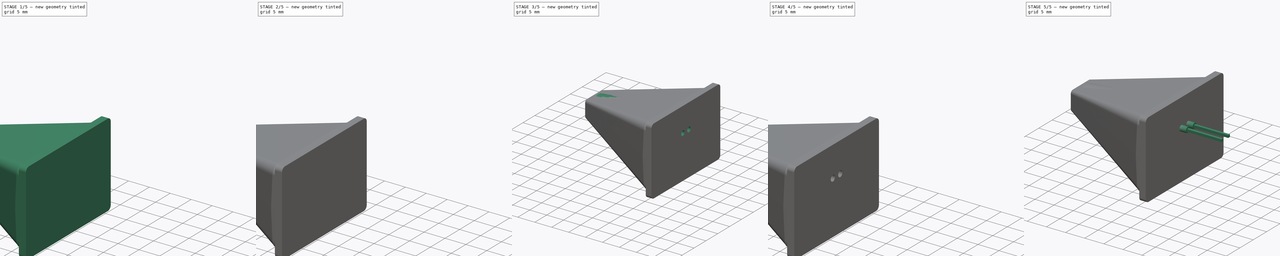
[diagram: build sequence overview — one tinted view per stage of 5, left to right]
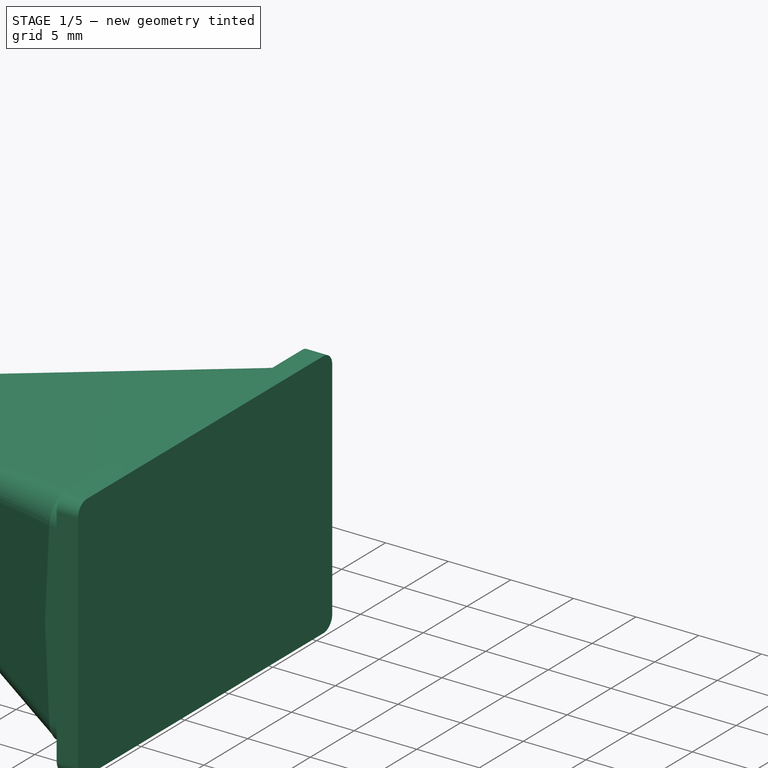
[diagram: stage 1 of 5 — iso view after this stage's code; geometry added in this stage tinted green]
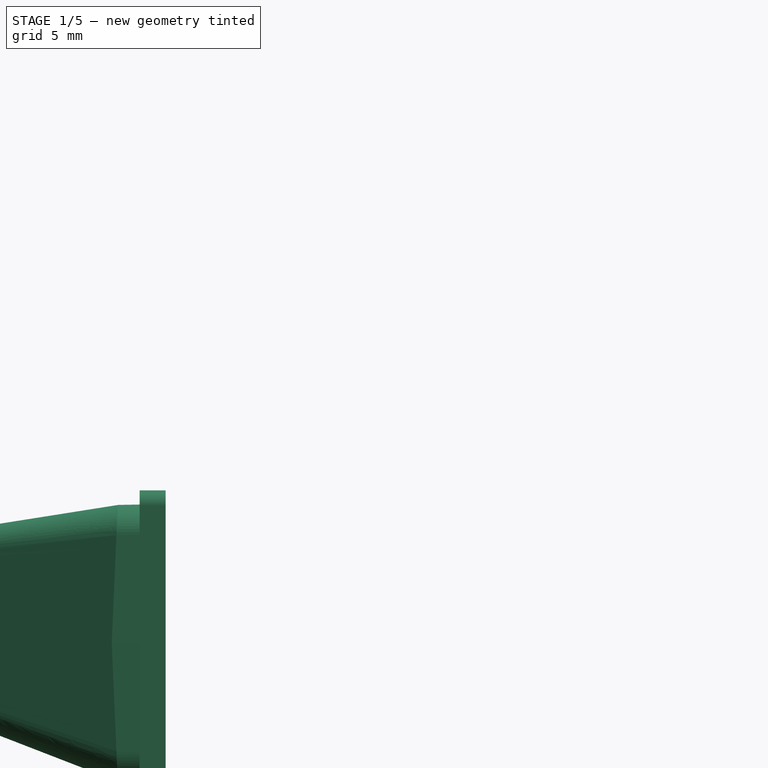
[diagram: stage 1 of 5 — front view after this stage's code; geometry added in this stage tinted green]
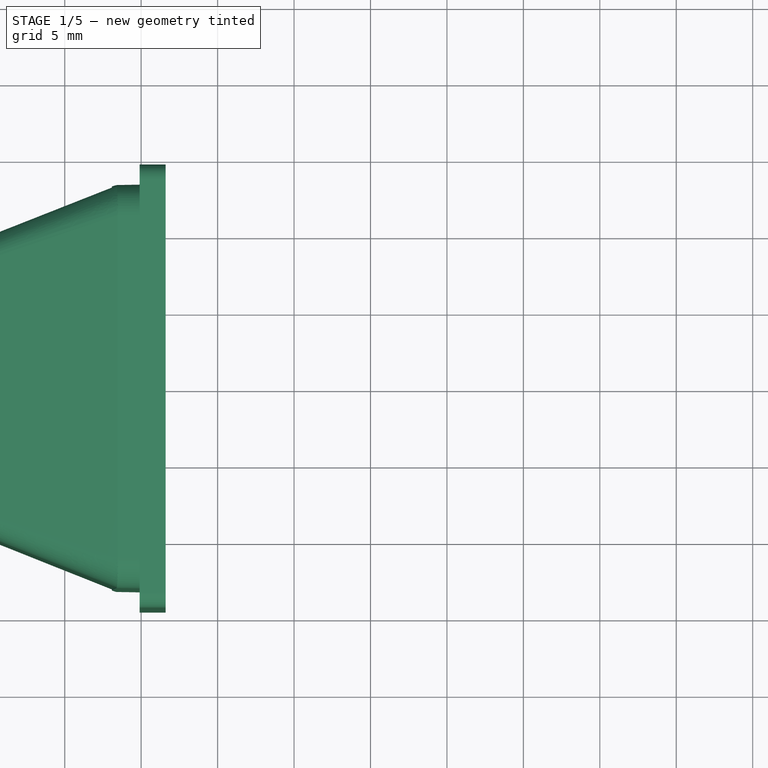
[diagram: stage 1 of 5 — top view after this stage's code; geometry added in this stage tinted green]
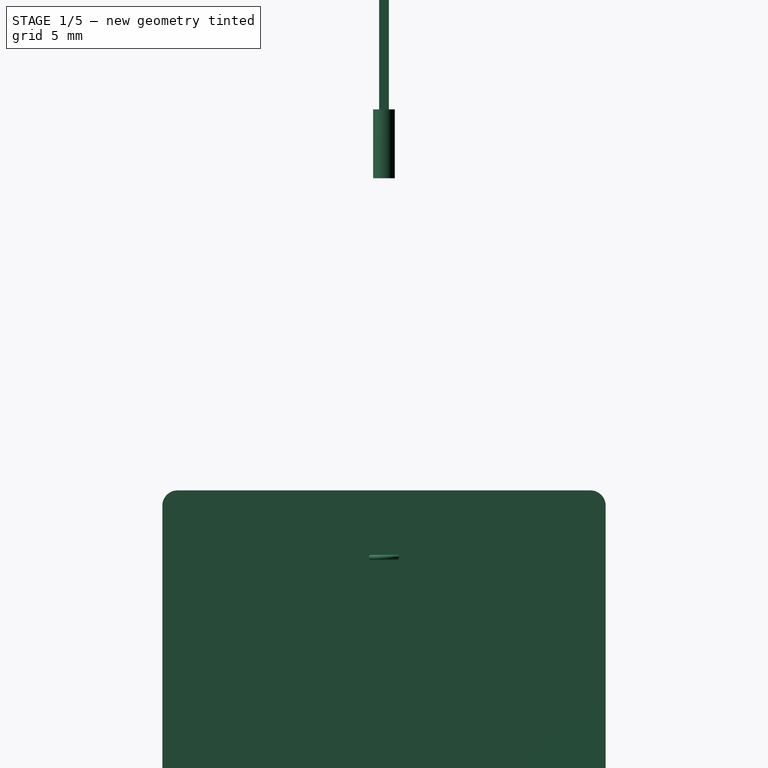
[diagram: stage 1 of 5 — right view after this stage's code; geometry added in this stage tinted green]
FCSTD DOCUMENT  (FreeCAD 0.19R24366 (Git))
Label: nose
License: All rights reserved
LicenseURL: http://en.wikipedia.org/wiki/All_rights_reserved
objects: Part::Torus×8, Part::FeaturePython×7, Part::Cone×5, Part::Cylinder×4, Part::Box×4, Part::Compound×3, Part::Feature×3, Sketcher::SketchObject×2, PartDesign::AdditiveLoft×1, PartDesign::Body×1
note: 39 computed .brp shape members not serialized (recipe doc carries the construction recipe); baked Part::Feature solids carry a one-line shape summary decoded from their .brp

FEATURE [Part::Torus] Torus006
  Angle1 = -180
  Angle2 = 180
  Angle3 = 360
  AttacherType = Attacher::AttachEngine3D
  Placement = pos=(-1.27,0,0) rot=(0,0,1;0rad)
  Radius1 = 0.835
  Radius2 = 0.165
  expr: Radius1 = 1.67 / 2
FEATURE [Part::Torus] Torus007
  Angle1 = -180
  Angle2 = 180
  Angle3 = 360
  AttacherType = Attacher::AttachEngine3D
  Placement = pos=(1.27,0,0) rot=(0,0,1;0rad)
  Radius1 = 0.835
  Radius2 = 0.165
  expr: Radius1 = 1.67 / 2
FEATURE [Part::Cylinder] Cylinder003
  Angle = 360
  AttacherType = Attacher::AttachEngine3D
  Height = 4.5
  Placement = pos=(1.27,0,24.8) rot=(0,0,1;0rad)
  Radius = 0.715
  expr: Radius = 1.43 / 2
FEATURE [Part::Box] Box003  label="Cube011"
  AttacherType = Attacher::AttachEngine3D
  Height = 9
  Length = 0.64
  Placement = pos=(-1.59,-0.32,29.3) rot=(0,0,1;0rad)
  Width = 0.64
  expr: .Placement.Base.x = -1.27 - 0.64 / 2
  expr: .Placement.Base.y = -0.64 / 2
FEATURE [Sketcher::SketchObject] Sketch005
  FullyConstrained = false
  Placement = pos=(0,0,0) rot=(0,0,1;3.14159rad)
  sketch-geometry (14):
    g0: BSplineCurve PolesCount=15 KnotsCount=15 Degree=1 IsPeriodic=0
    g1: BSplineCurve PolesCount=15 KnotsCount=15 Degree=1 IsPeriodic=0
    g2: BSplineCurve PolesCount=15 KnotsCount=15 Degree=1 IsPeriodic=0
    g3: BSplineCurve PolesCount=15 KnotsCount=15 Degree=1 IsPeriodic=0
    g4: LineSegment StartX=-6.05619 StartY=13.2162 StartZ=0 EndX=-12.7053 EndY=13.1864 EndZ=0
    g5: BSplineCurve PolesCount=15 KnotsCount=15 Degree=1 IsPeriodic=0
    g6: LineSegment StartX=-14.67 StartY=11.2129 StartZ=0 EndX=-14.67 EndY=-11.2129 EndZ=0
    g7: BSplineCurve PolesCount=15 KnotsCount=15 Degree=1 IsPeriodic=0
    g8: LineSegment StartX=-12.7053 StartY=-13.1864 StartZ=0 EndX=-6.05619 EndY=-13.2162 EndZ=0
    g9: LineSegment StartX=-5.18381 StartY=-13.2162 StartZ=0 EndX=1.46533 EndY=-13.1864 EndZ=0
    g10: BSplineCurve PolesCount=15 KnotsCount=15 Degree=1 IsPeriodic=0
    g11: LineSegment StartX=3.43002 StartY=-11.2129 StartZ=0 EndX=3.43002 EndY=11.2129 EndZ=0
    g12: BSplineCurve PolesCount=15 KnotsCount=15 Degree=1 IsPeriodic=0
    g13: LineSegment StartX=1.46533 StartY=13.1864 StartZ=0 EndX=-5.18381 EndY=13.1864 EndZ=0
  constraints (3):
    c: Coincident(g13,g12)
    c: Coincident(g13,g1)
    c: Horizontal(g13)
FEATURE [Sketcher::SketchObject] Sketch006
  AttachmentOffset = pos=(0,0,24) rot=(0,0,1;0rad)
  FullyConstrained = true
  MapMode = 5
  Placement = pos=(0,0,24) rot=(0,0,1;0rad)
  Support = -> [XY_Plane002]
  expr: Constraints[5] = 5 + 2.54
  expr: Constraints[6] = 2.87
  sketch-geometry (13):
    g0: LineSegment StartX=1.07711 StartY=-3.77 StartZ=0 EndX=4.66289 EndY=-3.77 EndZ=0
    g1: LineSegment StartX=5.37 StartY=-3.06289 StartZ=0 EndX=5.37 EndY=3.06289 EndZ=0
    g2: LineSegment StartX=4.66289 StartY=3.77 StartZ=0 EndX=1.07711 EndY=3.77 EndZ=0
    g3: LineSegment StartX=0.37 StartY=3.06289 StartZ=0 EndX=0.37 EndY=-3.06289 EndZ=0
    g4: GeomPoint X=2.87 Y=0 Z=0
    g5: ArcOfCircle CenterX=4.66289 CenterY=-3.06289 CenterZ=0 NormalX=0 NormalY=0 NormalZ=1 AngleXU=0 Radius=0.707107 StartAngle=4.71239 EndAngle=6.28319
    g6: GeomPoint X=5.37 Y=-3.77 Z=0
    g7: ArcOfCircle CenterX=1.07711 CenterY=-3.06289 CenterZ=0 NormalX=0 NormalY=0 NormalZ=1 AngleXU=0 Radius=0.707107 StartAngle=3.14159 EndAngle=4.71239
    g8: GeomPoint X=0.37 Y=-3.77 Z=0
    g9: ArcOfCircle CenterX=4.66289 CenterY=3.06289 CenterZ=0 NormalX=0 NormalY=0 NormalZ=1 AngleXU=0 Radius=0.707107 StartAngle=0 EndAngle=1.5708
    g10: GeomPoint X=5.37 Y=3.77 Z=0
    g11: ArcOfCircle CenterX=1.07711 CenterY=3.06289 CenterZ=0 NormalX=0 NormalY=0 NormalZ=1 AngleXU=0 Radius=0.707107 StartAngle=1.5708 EndAngle=3.14159
    g12: GeomPoint X=0.37 Y=3.77 Z=0
  constraints (28):
    c: Horizontal(g0)
    c: Horizontal(g2)
    c: Vertical(g3)
    c: Symmetric(g10,g6,g-1)
    c: DistanceX(g12,g10) = 5
    c: DistanceY(g8,g12) = 7.54
    c: Distance(g-1,g4) = 2.87
    c: Symmetric(g12,g6,g4)
    c: PointOnObject(g6,g0)
    c: PointOnObject(g6,g1)
    c: Tangent(g0,g5) = -1.5708
    c: Tangent(g1,g5) = -1.5708
    c: Distance(g5,g6) = 1
    c: PointOnObject(g8,g0)
    c: PointOnObject(g8,g3)
    c: Tangent(g0,g7) = -1.5708
    c: Tangent(g3,g7) = -1.5708
    c: Distance(g8,g7) = 1
    c: PointOnObject(g10,g1)
    c: PointOnObject(g10,g2)
    c: Tangent(g1,g9) = -1.5708
    c: Tangent(g2,g9) = -1.5708
    c: Distance(g10,g9) = 1
    c: PointOnObject(g12,g2)
    c: PointOnObject(g12,g3)
    c: Tangent(g2,g11) = -1.5708
    c: Tangent(g3,g11) = -1.5708
    c: Distance(g12,g11) = 1
FEATURE [PartDesign::AdditiveLoft] AdditiveLoft002
  Closed = false
  Profile = -> Sketch006
  Ruled = false
  Sections = -> [Sketch005]
FEATURE [PartDesign::Body] Body002  label="cone004"
  Group = -> [Sketch006,Sketch005,AdditiveLoft002]
  Origin = -> Origin002
  Placement = pos=(-56.5,0,0) rot=(0.707107,0,-0.707107;3.14159rad)
  Tip = -> AdditiveLoft002
FEATURE [Part::Feature] Part__Feature021  label="1593D Contoured Endplate002"
  Placement = pos=(-54.25,0,-5.62) rot=(0.57735,0.57735,-0.57735;4.18879rad)
  shape: bbox 3.517 x 29 x 20 mm, 23 faces (baked)
FEATURE [Part::FeaturePython] Connect001  label="ConeConnected"  # WARN: FeaturePython — macro-defined, semantics opaque (R4)
  Objects = -> [Body002,Part__Feature021]
  Tolerance = 0
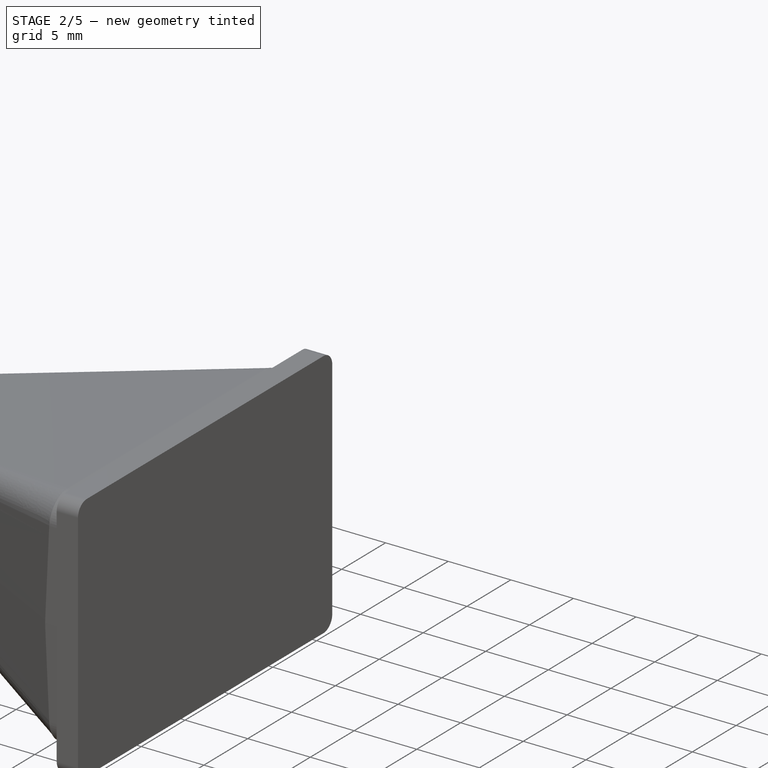
[diagram: stage 2 of 5 — iso view after this stage's code; geometry added in this stage tinted green]
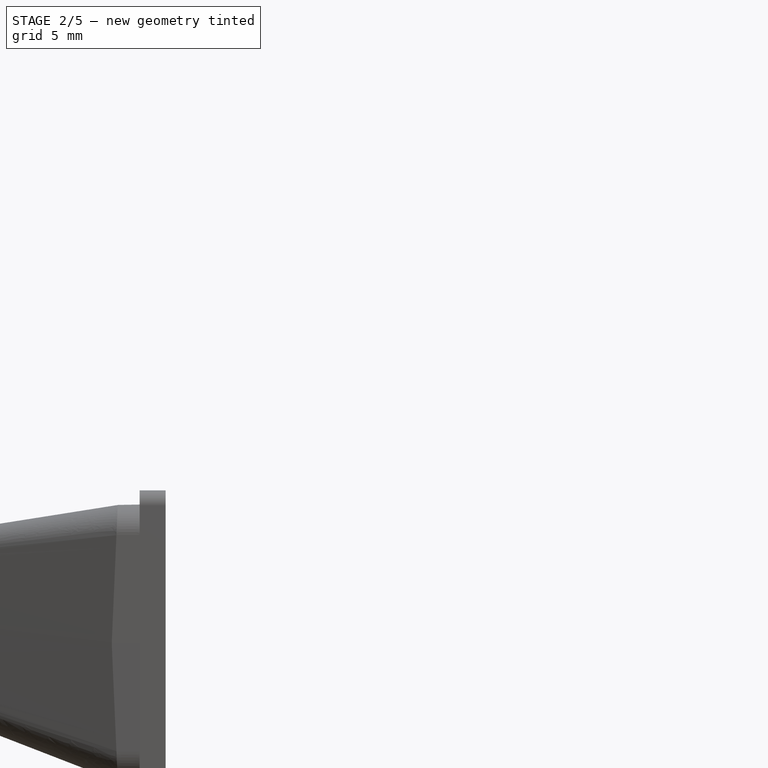
[diagram: stage 2 of 5 — front view after this stage's code; geometry added in this stage tinted green]
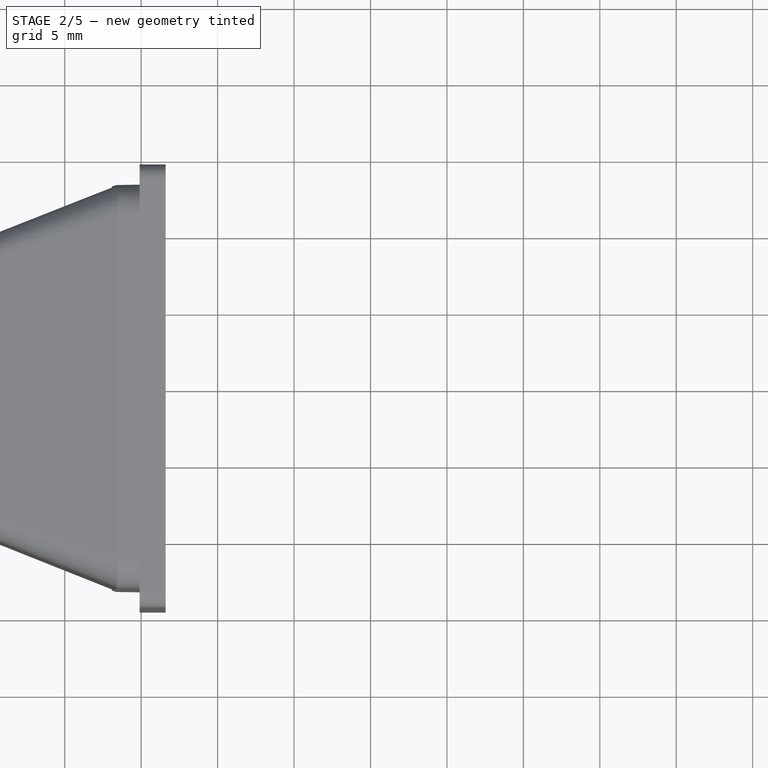
[diagram: stage 2 of 5 — top view after this stage's code; geometry added in this stage tinted green]
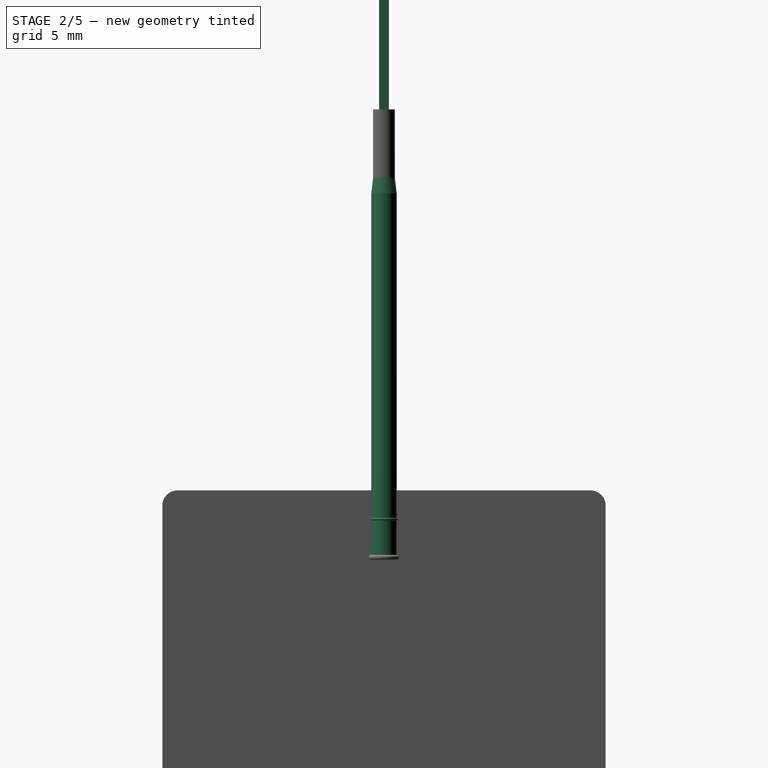
[diagram: stage 2 of 5 — right view after this stage's code; geometry added in this stage tinted green]
FEATURE [Part::Cylinder] Cylinder002
  Angle = 360
  AttacherType = Attacher::AttachEngine3D
  Height = 4.5
  Placement = pos=(-1.27,0,24.8) rot=(0,0,1;0rad)
  Radius = 0.715
  expr: Radius = 1.43 / 2
FEATURE [Part::Torus] Torus004
  Angle1 = -180
  Angle2 = 180
  Angle3 = 360
  AttacherType = Attacher::AttachEngine3D
  Placement = pos=(-1.27,0,2.5) rot=(0,0,1;0rad)
  Radius1 = 0.835
  Radius2 = 0.08
  expr: Radius1 = 1.67 / 2
FEATURE [Part::Torus] Torus005
  Angle1 = -180
  Angle2 = 180
  Angle3 = 360
  AttacherType = Attacher::AttachEngine3D
  Placement = pos=(1.27,0,2.5) rot=(0,0,1;0rad)
  Radius1 = 0.835
  Radius2 = 0.08
  expr: Radius1 = 1.67 / 2
FEATURE [Part::Box] Box002  label="Cube010"
  AttacherType = Attacher::AttachEngine3D
  Height = 9
  Length = 0.64
  Placement = pos=(0.95,-0.32,29.3) rot=(0,0,1;0rad)
  Width = 0.64
  expr: .Placement.Base.y = -0.64 / 2
  expr: .Placement.Base.x = 1.27 - 0.64 / 2
FEATURE [Part::Cone] Cone005
  Angle = 360
  AttacherType = Attacher::AttachEngine3D
  Height = 1
  Placement = pos=(-1.27,0,23.8) rot=(0,0,1;0rad)
  Radius1 = 0.835
  Radius2 = 0.715
  expr: Radius1 = 1.67 / 2
  expr: Radius2 = 1.43 / 2
FEATURE [Part::FeaturePython] Tube002  # WARN: FeaturePython — macro-defined, semantics opaque (R4)
  AttacherType = Attacher::AttachEngine3D
  Height = 23.8
  InnerRadius = 0.65
  OuterRadius = 0.835
  Placement = pos=(-1.27,0,0) rot=(0,0,1;0rad)
  expr: OuterRadius = 1.67 / 2
  expr: InnerRadius = 1.3 / 2
FEATURE [Part::FeaturePython] Tube003  # WARN: FeaturePython — macro-defined, semantics opaque (R4)
  AttacherType = Attacher::AttachEngine3D
  Height = 23.8
  InnerRadius = 0.65
  OuterRadius = 0.835
  Placement = pos=(1.27,0,0) rot=(0,0,1;0rad)
  expr: InnerRadius = 1.3 / 2
  expr: OuterRadius = 1.67 / 2
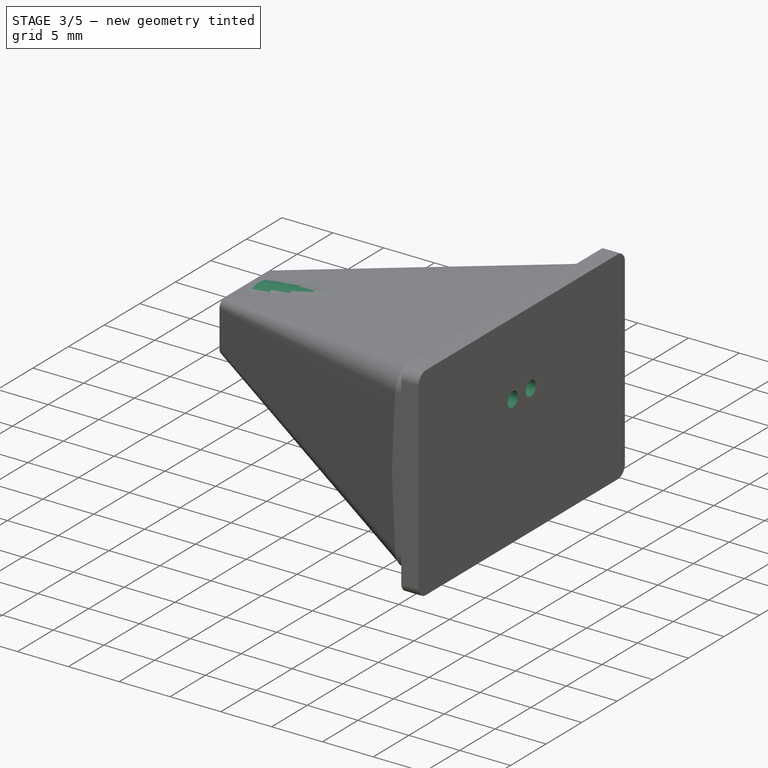
[diagram: stage 3 of 5 — iso view after this stage's code; geometry added in this stage tinted green]
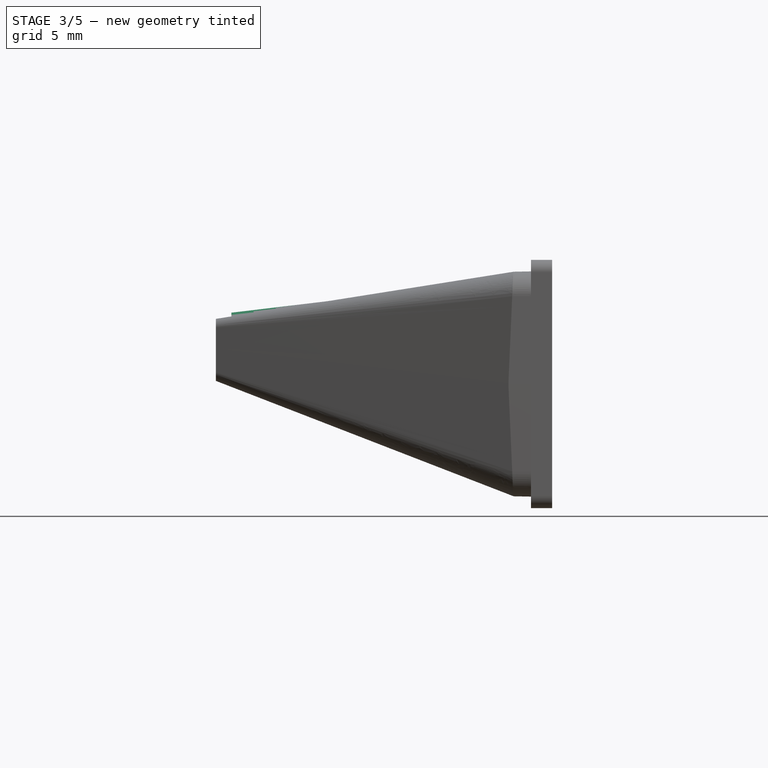
[diagram: stage 3 of 5 — front view after this stage's code; geometry added in this stage tinted green]
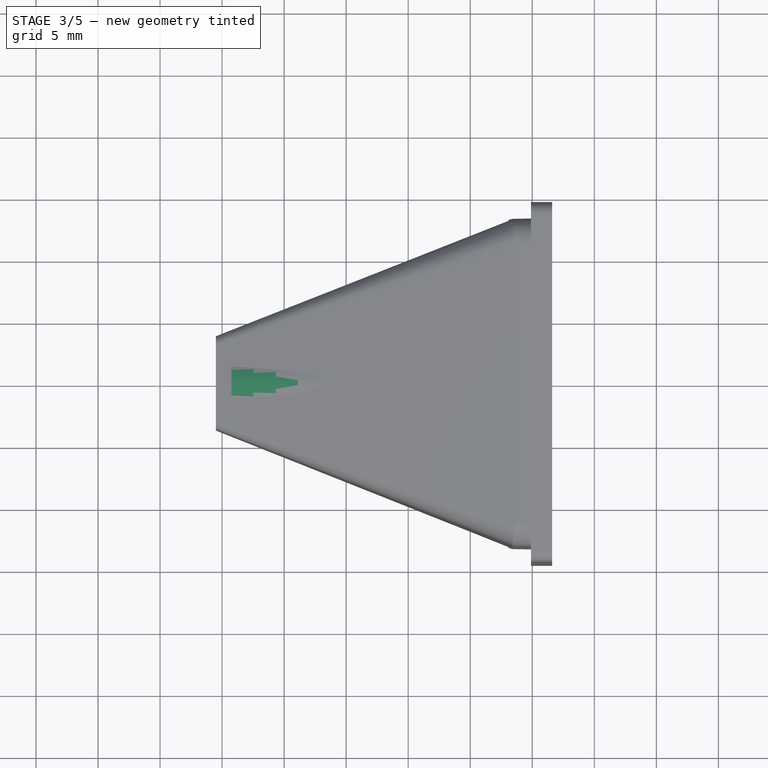
[diagram: stage 3 of 5 — top view after this stage's code; geometry added in this stage tinted green]
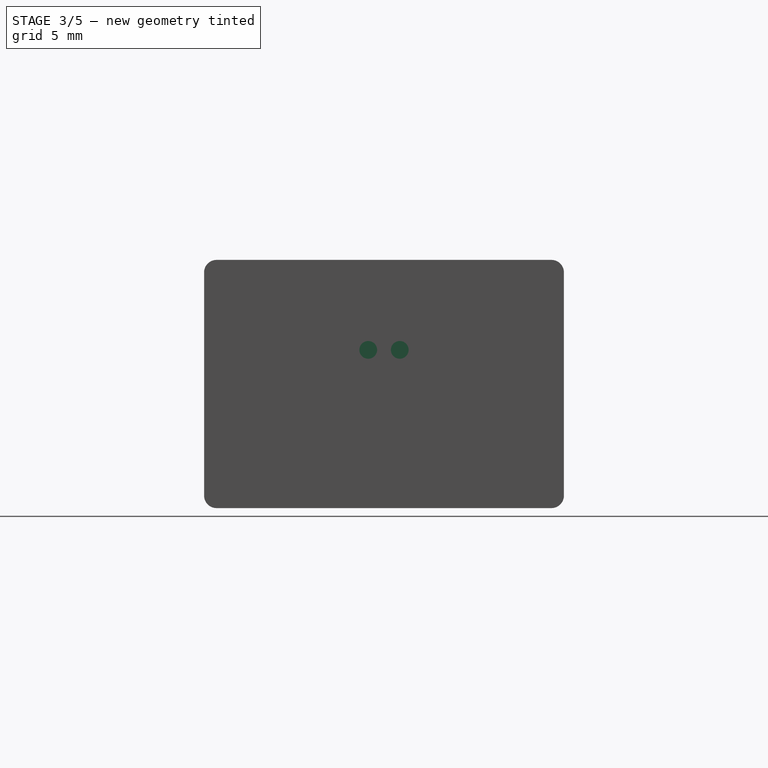
[diagram: stage 3 of 5 — right view after this stage's code; geometry added in this stage tinted green]
FEATURE [Part::Cone] Cone
  Angle = 360
  AttacherType = Attacher::AttachEngine3D
  Height = 25
  Placement = pos=(-79.25,0,-2.87) rot=(0,1,0;1.5708rad)
  Radius1 = 3
  Radius2 = 6
FEATURE [Part::Feature] Part__Feature017  label="1593D Top"
  Placement = pos=(0,0,-5.62) rot=(1,0,0;3.14159rad)
  shape: bbox 114 x 35.71 x 12.96 mm, 111 faces (baked)
FEATURE [Part::Feature] Part__Feature018  label="1593D Bottom"
  Placement = pos=(0,0,-5.62) rot=(0,0,1;3.14159rad)
  shape: bbox 114 x 35.68 x 240.8 mm, 294 faces (baked)
FEATURE [Part::Cone] Cone004
  Angle = 360
  AttacherType = Attacher::AttachEngine3D
  Height = 1
  Placement = pos=(1.27,0,23.8) rot=(0,0,1;0rad)
  Radius1 = 0.835
  Radius2 = 0.715
  expr: Radius2 = 1.43 / 2
  expr: Radius1 = 1.67 / 2
FEATURE [Part::Compound] Compound004  label="R100-1W001"
  Links = -> [Tube002,Tube003,Torus006,Torus007,Torus004,Torus005,Cone005,Cone004,Cylinder002,Cylinder003,Box003,Box002]
  Placement = pos=(-81,0,-2.87001) rot=(0.57735,0.57735,0.57735;2.0944rad)
FEATURE [Part::FeaturePython] Connect  label="R100-1W_Connected"  # WARN: FeaturePython — macro-defined, semantics opaque (R4)
  Objects = -> [Compound004]
  Tolerance = 0
FEATURE [Part::FeaturePython] Cutout001  label="NoseCone"  # WARN: FeaturePython — macro-defined, semantics opaque (R4)
  Base = -> Connect001
  Tolerance = 0
  Tool = -> Connect
FEATURE [Part::Compound] Compound  label="NoseCone001"
  Links = -> [Cutout001]
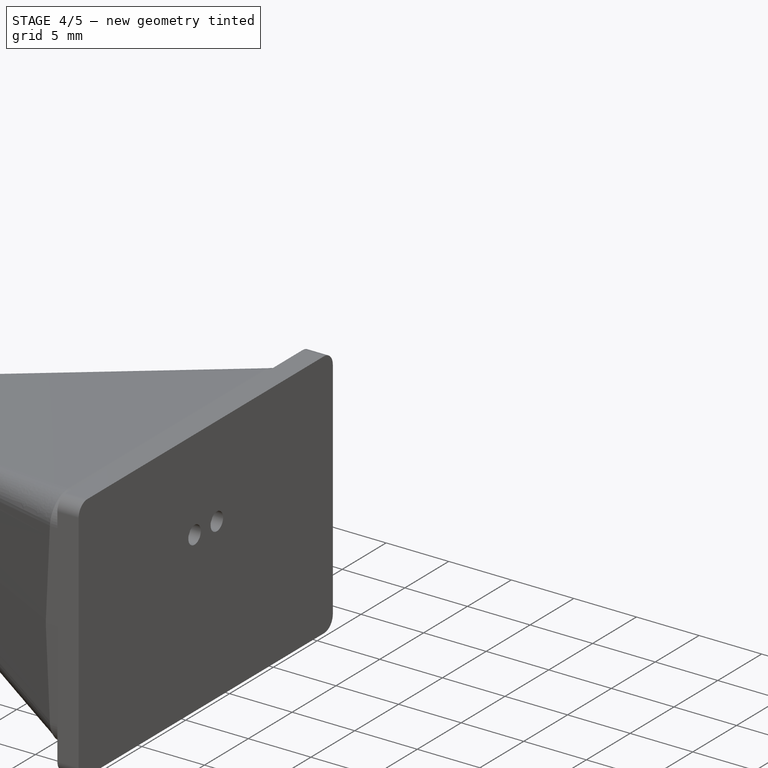
[diagram: stage 4 of 5 — iso view after this stage's code; geometry added in this stage tinted green]
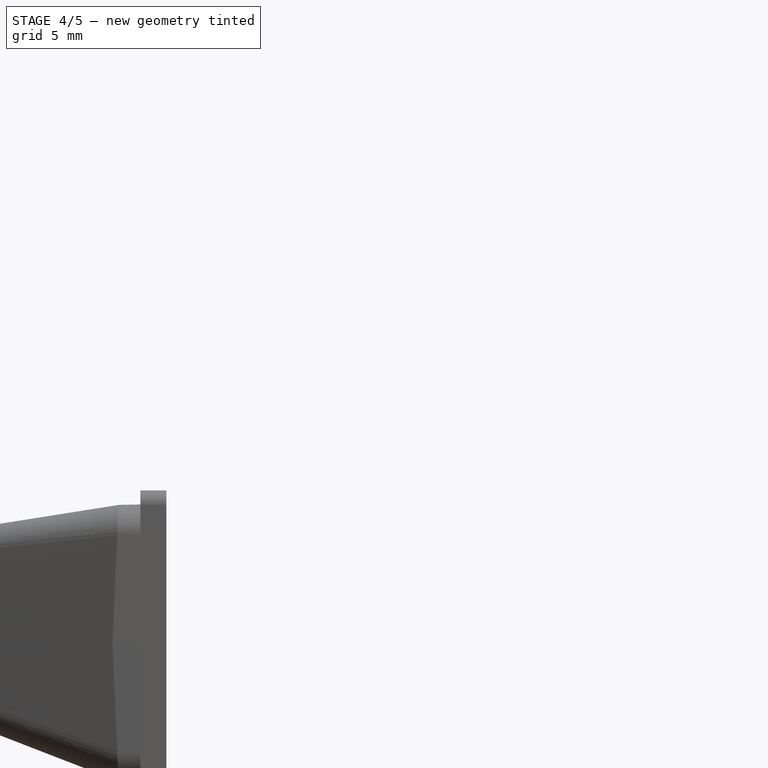
[diagram: stage 4 of 5 — front view after this stage's code; geometry added in this stage tinted green]
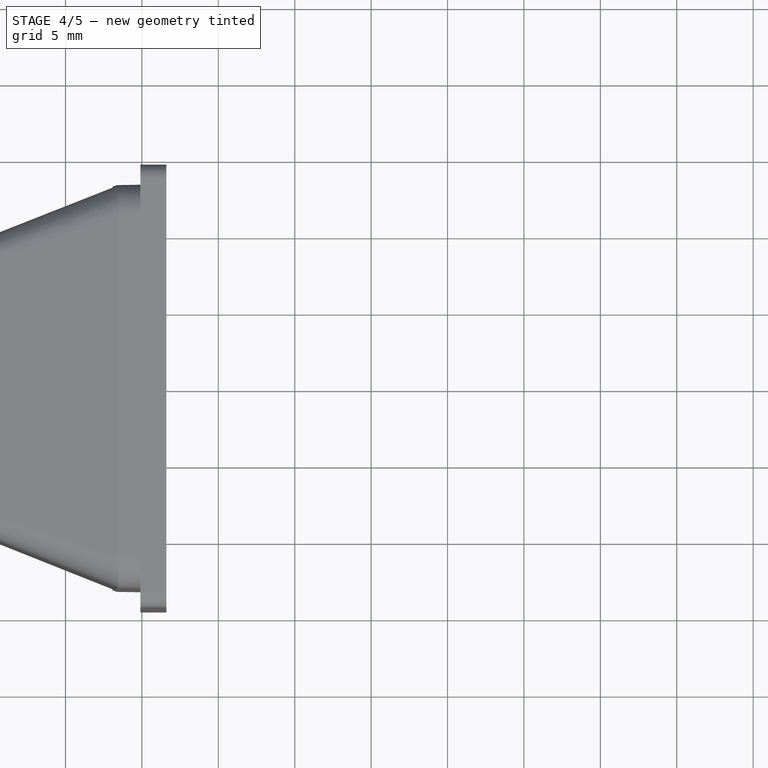
[diagram: stage 4 of 5 — top view after this stage's code; geometry added in this stage tinted green]
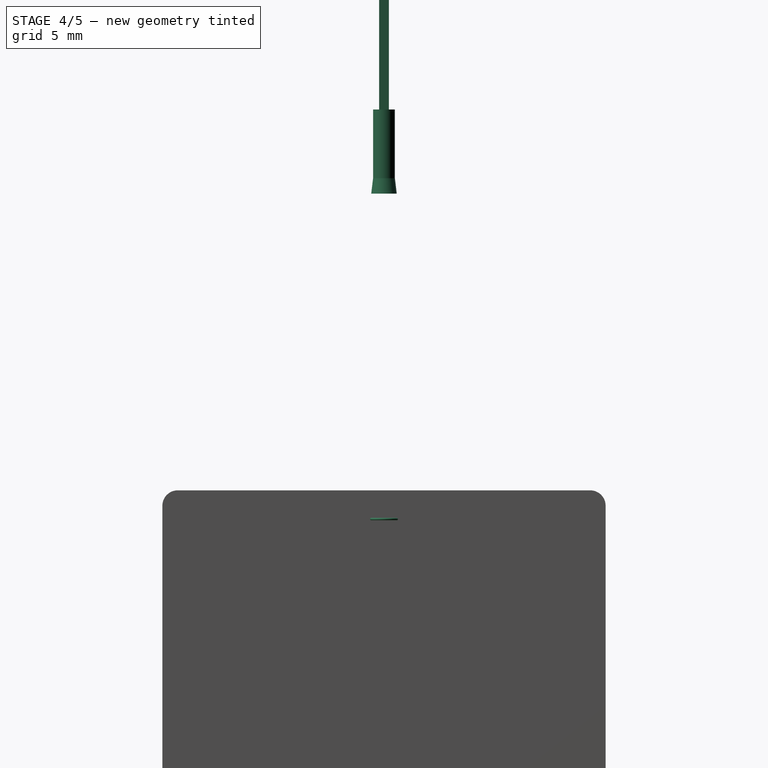
[diagram: stage 4 of 5 — right view after this stage's code; geometry added in this stage tinted green]
FEATURE [Part::Torus] Torus003
  Angle1 = -180
  Angle2 = 180
  Angle3 = 360
  AttacherType = Attacher::AttachEngine3D
  Placement = pos=(1.27,0,2.5) rot=(0,0,1;0rad)
  Radius1 = 0.835
  Radius2 = 0.08
  expr: Radius1 = 1.67 / 2
FEATURE [Part::Cone] Cone002
  Angle = 360
  AttacherType = Attacher::AttachEngine3D
  Height = 1
  Placement = pos=(-1.27,0,23.8) rot=(0,0,1;0rad)
  Radius1 = 0.835
  Radius2 = 0.715
  expr: Radius2 = 1.43 / 2
  expr: Radius1 = 1.67 / 2
FEATURE [Part::Cone] Cone003
  Angle = 360
  AttacherType = Attacher::AttachEngine3D
  Height = 1
  Placement = pos=(1.27,0,23.8) rot=(0,0,1;0rad)
  Radius1 = 0.835
  Radius2 = 0.715
  expr: Radius1 = 1.67 / 2
  expr: Radius2 = 1.43 / 2
FEATURE [Part::Cylinder] Cylinder
  Angle = 360
  AttacherType = Attacher::AttachEngine3D
  Height = 4.5
  Placement = pos=(-1.27,0,24.8) rot=(0,0,1;0rad)
  Radius = 0.715
  expr: Radius = 1.43 / 2
FEATURE [Part::Cylinder] Cylinder001
  Angle = 360
  AttacherType = Attacher::AttachEngine3D
  Height = 4.5
  Placement = pos=(1.27,0,24.8) rot=(0,0,1;0rad)
  Radius = 0.715
  expr: Radius = 1.43 / 2
FEATURE [Part::Box] Box  label="Cube008"
  AttacherType = Attacher::AttachEngine3D
  Height = 9
  Length = 0.64
  Placement = pos=(-1.59,-0.32,29.3) rot=(0,0,1;0rad)
  Width = 0.64
  expr: .Placement.Base.y = -0.64 / 2
  expr: .Placement.Base.x = -1.27 - 0.64 / 2
FEATURE [Part::Box] Box001  label="Cube009"
  AttacherType = Attacher::AttachEngine3D
  Height = 9
  Length = 0.64
  Placement = pos=(0.95,-0.32,29.3) rot=(0,0,1;0rad)
  Width = 0.64
  expr: .Placement.Base.x = 1.27 - 0.64 / 2
  expr: .Placement.Base.y = -0.64 / 2
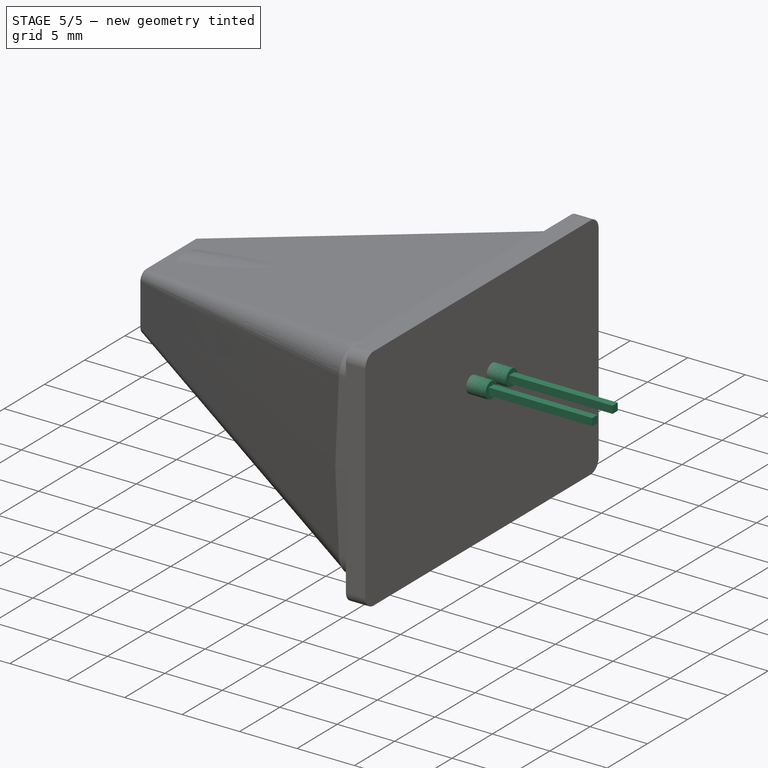
[diagram: stage 5 of 5 — iso view after this stage's code; geometry added in this stage tinted green]
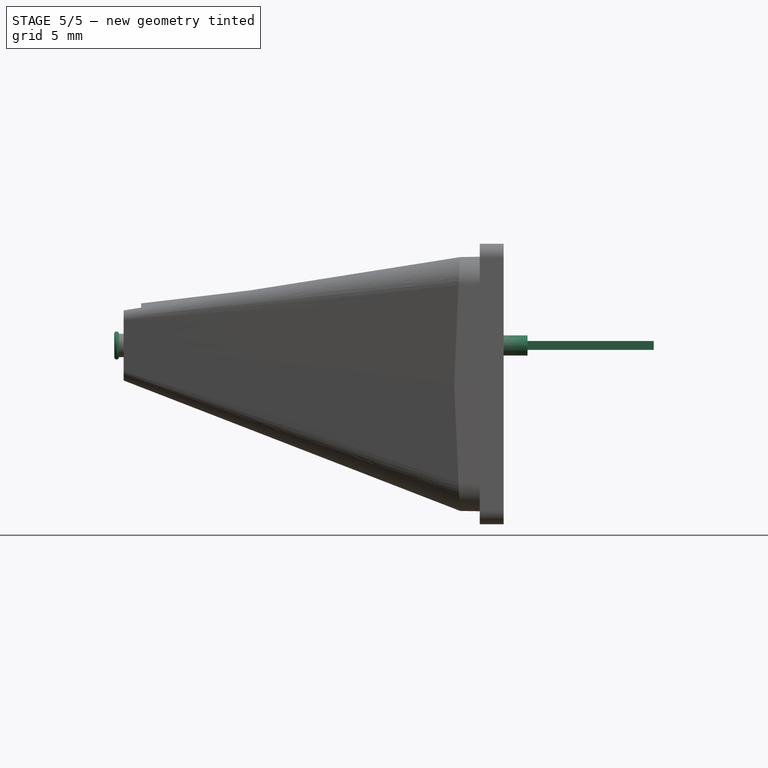
[diagram: stage 5 of 5 — front view after this stage's code; geometry added in this stage tinted green]
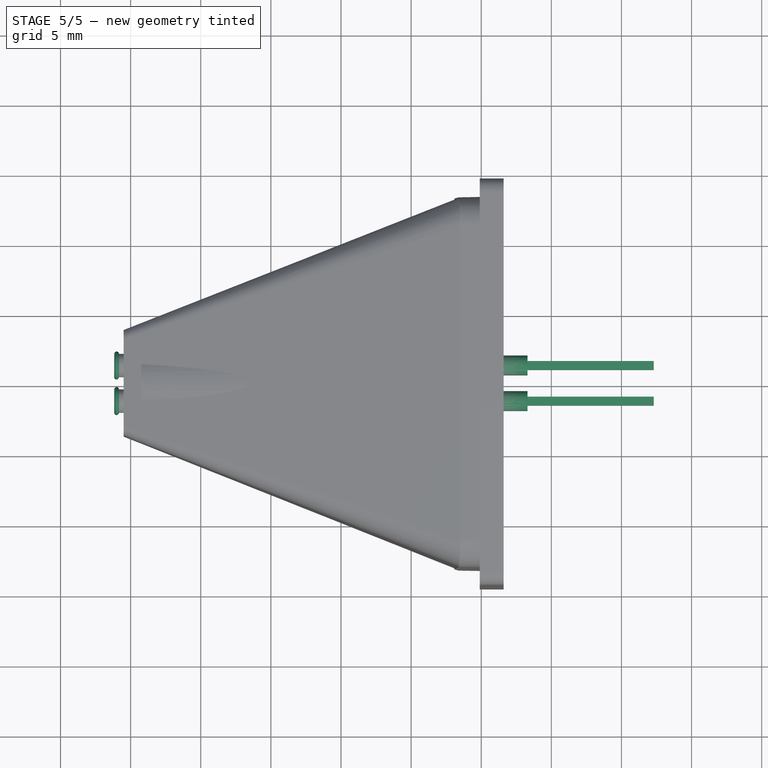
[diagram: stage 5 of 5 — top view after this stage's code; geometry added in this stage tinted green]
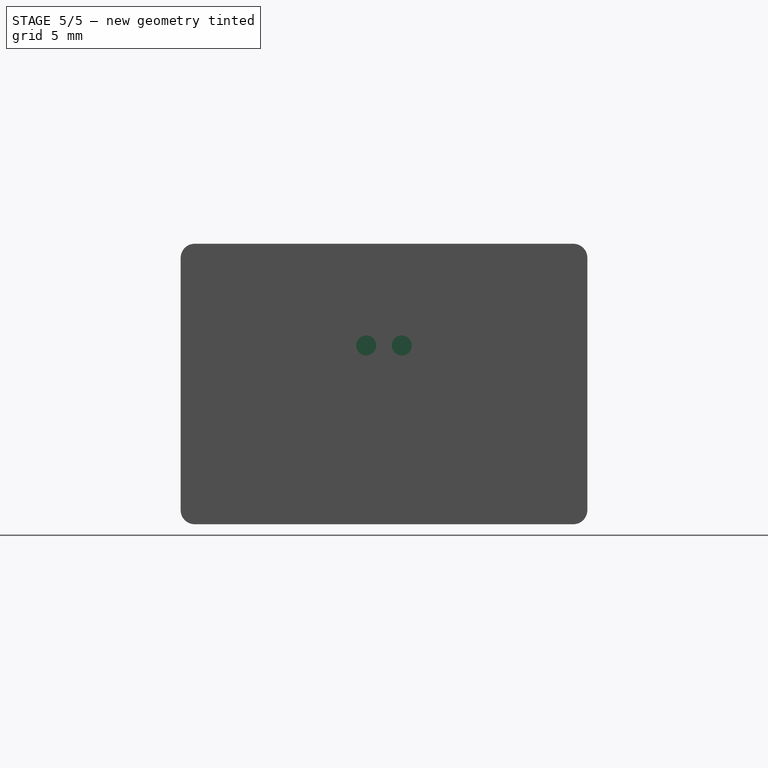
[diagram: stage 5 of 5 — right view after this stage's code; geometry added in this stage tinted green]
FEATURE [Part::FeaturePython] Tube  # WARN: FeaturePython — macro-defined, semantics opaque (R4)
  AttacherType = Attacher::AttachEngine3D
  Height = 23.8
  InnerRadius = 0.65
  OuterRadius = 0.835
  Placement = pos=(-1.27,0,0) rot=(0,0,1;0rad)
  expr: InnerRadius = 1.3 / 2
  expr: OuterRadius = 1.67 / 2
FEATURE [Part::FeaturePython] Tube001  # WARN: FeaturePython — macro-defined, semantics opaque (R4)
  AttacherType = Attacher::AttachEngine3D
  Height = 23.8
  InnerRadius = 0.65
  OuterRadius = 0.835
  Placement = pos=(1.27,0,0) rot=(0,0,1;0rad)
  expr: OuterRadius = 1.67 / 2
  expr: InnerRadius = 1.3 / 2
FEATURE [Part::Torus] Torus
  Angle1 = -180
  Angle2 = 180
  Angle3 = 360
  AttacherType = Attacher::AttachEngine3D
  Placement = pos=(-1.27,0,0) rot=(0,0,1;0rad)
  Radius1 = 0.835
  Radius2 = 0.165
  expr: Radius1 = 1.67 / 2
FEATURE [Part::Torus] Torus001
  Angle1 = -180
  Angle2 = 180
  Angle3 = 360
  AttacherType = Attacher::AttachEngine3D
  Placement = pos=(1.27,0,0) rot=(0,0,1;0rad)
  Radius1 = 0.835
  Radius2 = 0.165
  expr: Radius1 = 1.67 / 2
FEATURE [Part::Torus] Torus002
  Angle1 = -180
  Angle2 = 180
  Angle3 = 360
  AttacherType = Attacher::AttachEngine3D
  Placement = pos=(-1.27,0,2.5) rot=(0,0,1;0rad)
  Radius1 = 0.835
  Radius2 = 0.08
  expr: Radius1 = 1.67 / 2
FEATURE [Part::Compound] Compound003  label="R100-1W"
  Links = -> [Tube,Tube001,Torus,Torus001,Torus002,Torus003,Cone002,Cone003,Cylinder,Cylinder001,Box,Box001]
  Placement = pos=(-81,0,-2.87001) rot=(0.57735,0.57735,0.57735;2.0944rad)
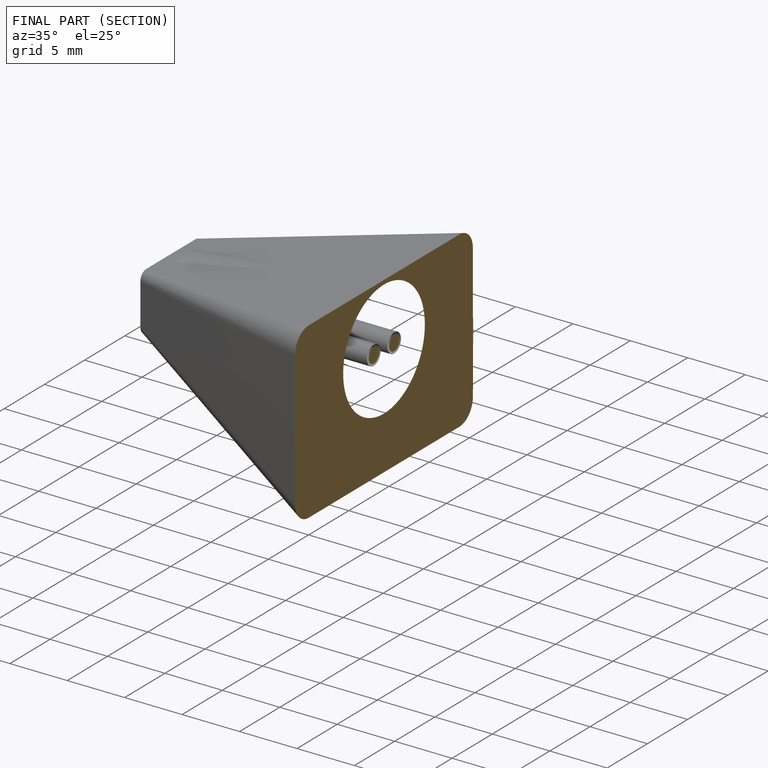
[diagram: finished part — half-section view (interior)]
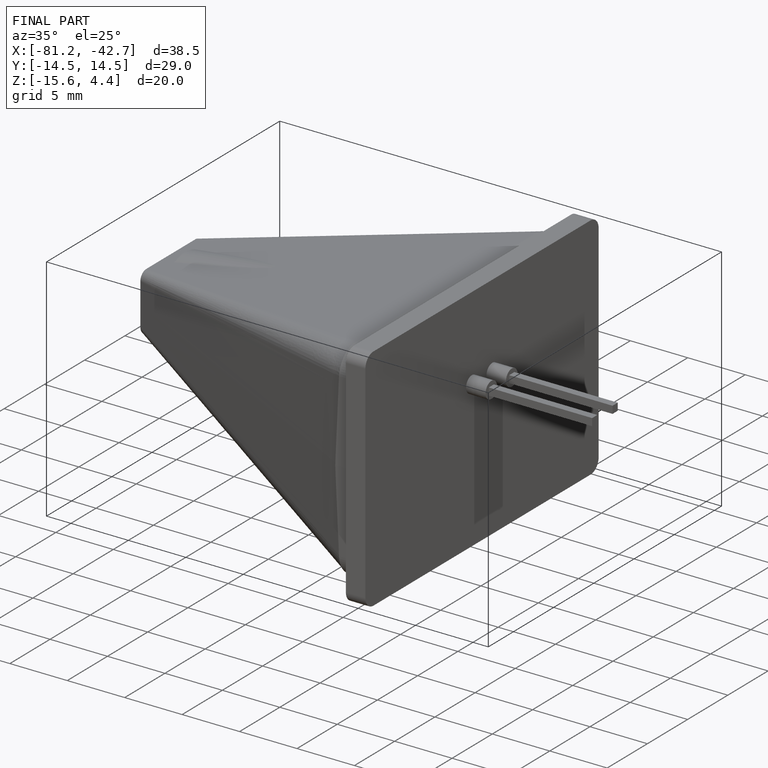
[diagram: finished part — iso view with bounding-box wireframe]
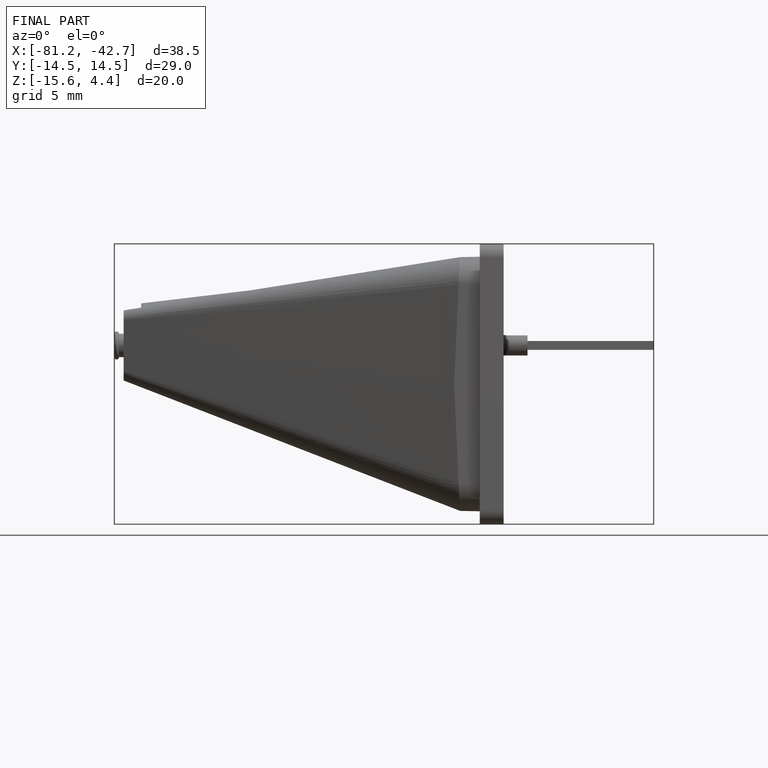
[diagram: finished part — front view with bounding-box wireframe]
